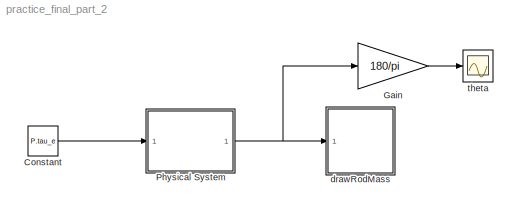
MODEL practice_final_part_2
KIND model
BLOCK [Constant] Constant
  SID = 39
  Value = P.tau_e
BLOCK [Gain] Gain
  Gain = 180/pi
  OutDataTypeStr = Inherit: Inherit via internal rule
  ParamDataTypeStr = Inherit: Inherit via internal rule
  SID = 14
  SaturateOnIntegerOverflow = off
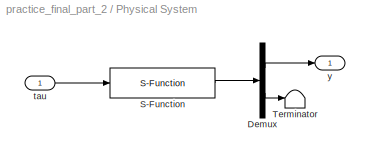
BLOCK [SubSystem] Physical System
  FunctionWithSeparateData = off
  MaskHideContents = off
  MinAlgLoopOccurrences = off
  Opaque = off
  Ports = [1, 1]
  PropExecContextOutsideSubsystem = off
  RTWSystemCode = Auto
  RequestExecContextInheritance = off
  SID = 17
BLOCK [Demux] Physical System/Demux
  DisplayOption = bar
  Outputs = [1;2]
  Ports = [1, 2]
  SID = 19
BLOCK [S-Function] Physical System/S-Function
  EnableBusSupport = off
  FunctionName = rodmass_dynamics
  Parameters = P
  Ports = [1, 1]
  SID = 41
BLOCK [Terminator] Physical System/Terminator
  SID = 42
BLOCK [Inport] Physical System/tau
  IconDisplay = Port number
  SID = 18
BLOCK [Outport] Physical System/y
  IconDisplay = Port number
  SID = 24
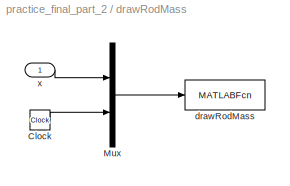
BLOCK [SubSystem] drawRodMass
  FunctionWithSeparateData = off
  MaskHideContents = off
  MinAlgLoopOccurrences = off
  Opaque = off
  Ports = [1]
  PropExecContextOutsideSubsystem = off
  RTWSystemCode = Auto
  RequestExecContextInheritance = off
  SID = 34
BLOCK [Clock] drawRodMass/Clock
  SID = 36
BLOCK [Mux] drawRodMass/Mux
  DisplayOption = bar
  Inputs = 2
  Ports = [2, 1]
  SID = 37
BLOCK [MATLABFcn] drawRodMass/drawRodMass
  MATLABFcn = drawRodMass(u,L,w,R,H)
  OutputDimensions = 0
  Ports = [1]
  SID = 38
  SampleTime = 0.1
BLOCK [Inport] drawRodMass/x
  IconDisplay = Port number
  SID = 35
BLOCK [Scope] theta
  DataFormat = StructureWithTime
  Floating = off
  NumInputPorts = 1
  Ports = [1]
  SID = 30
  SampleTime = 0
  ShowLegends = off
  TimeRange = 20
  YMax = 225
  YMin = -75
LINE Constant:1 -> Physical System:1
LINE Gain:1 -> theta:1
LINE Physical System/Demux:1 -> Physical System/y:1
LINE Physical System/Demux:2 -> Physical System/Terminator:1
LINE Physical System/S-Function:1 -> Physical System/Demux:1
LINE Physical System/tau:1 -> Physical System/S-Function:1
NET Physical System:1 -> Gain:1, drawRodMass:1
LINE drawRodMass/Clock:1 -> drawRodMass/Mux:2
LINE drawRodMass/Mux:1 -> drawRodMass/drawRodMass:1
LINE drawRodMass/x:1 -> drawRodMass/Mux:1
note: NET lines group one-source signal fan-out (src -> all destinations, sorted); 1:1 wires keep LINE
